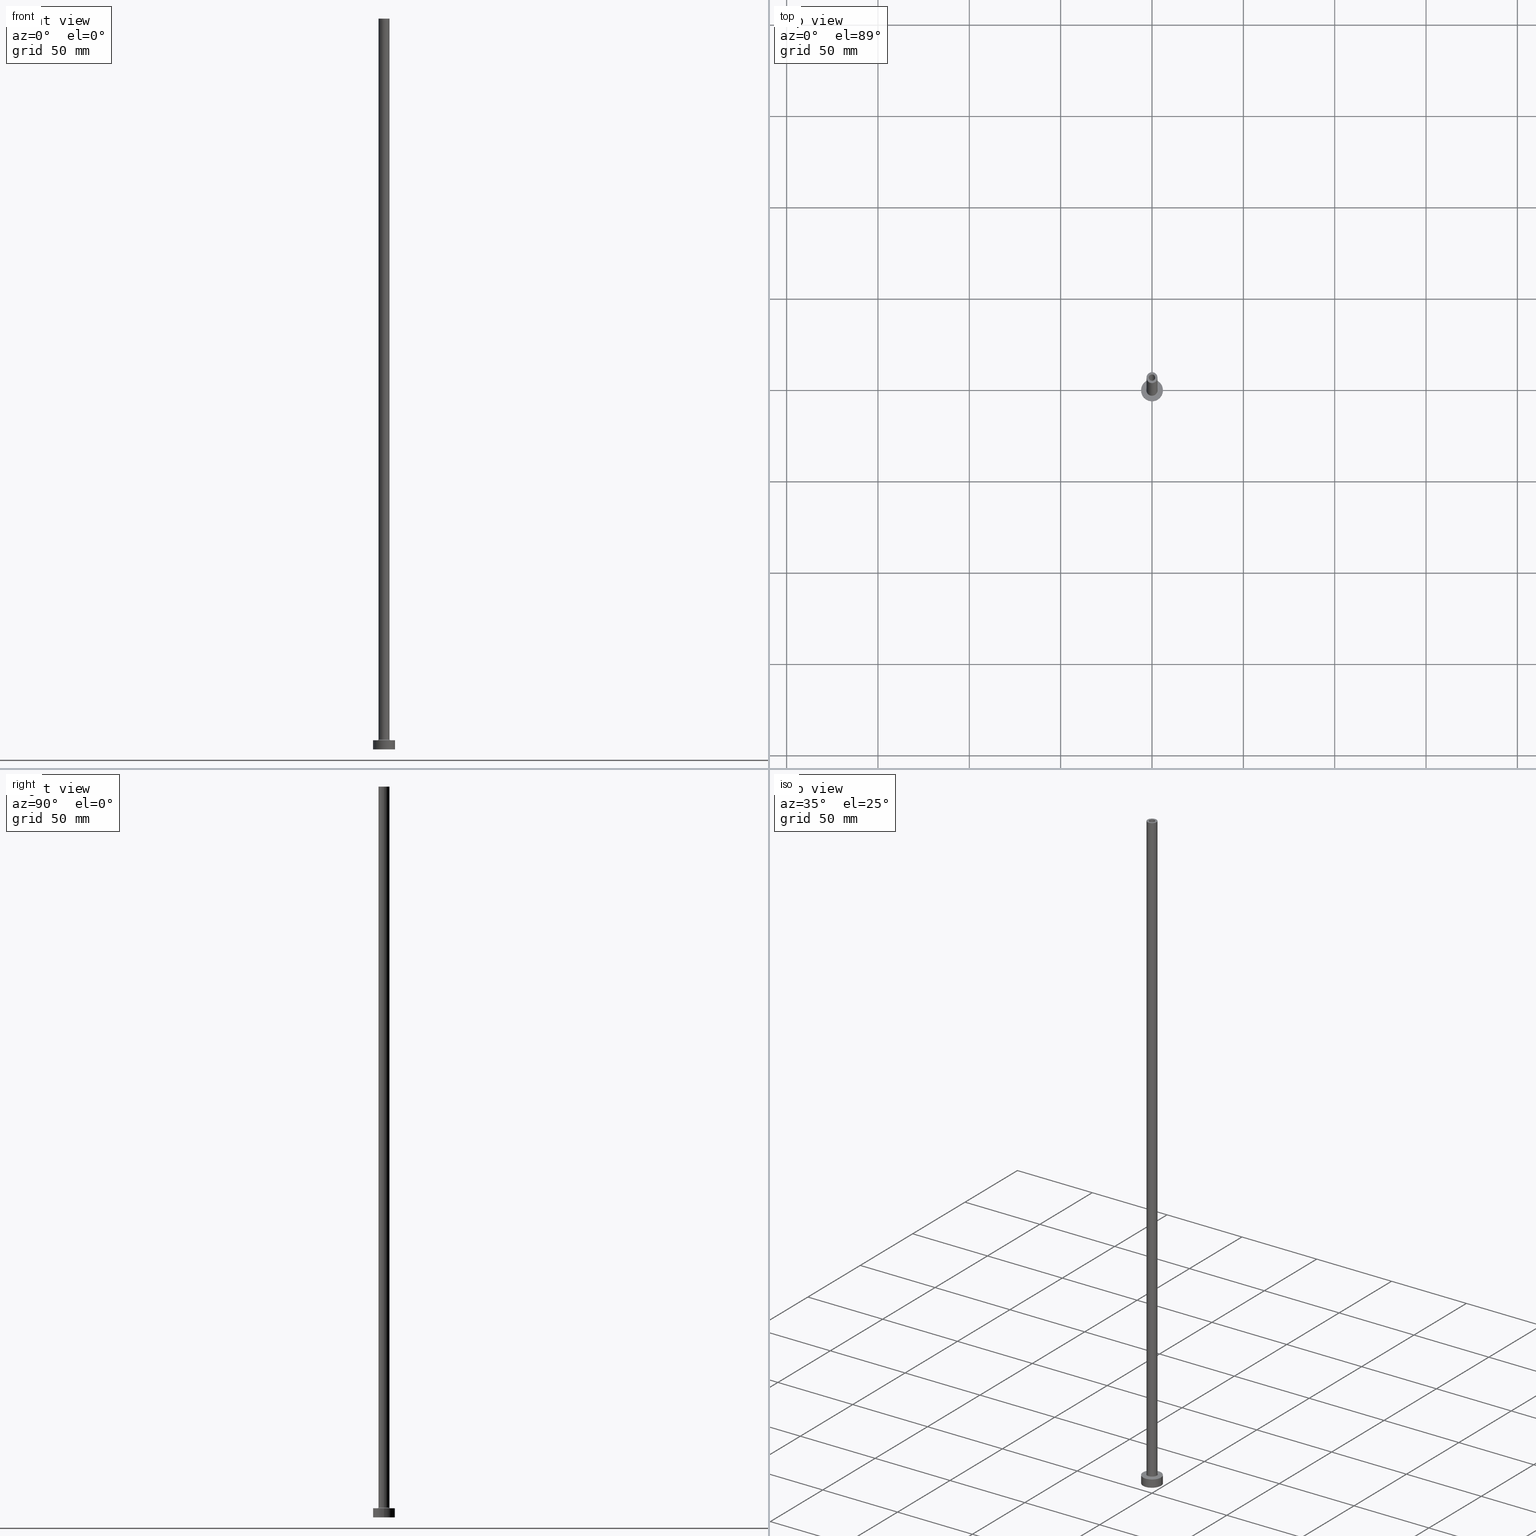
[diagram: canonical four-view strip — front | top / right | iso, engineering-drawing reading convention]
A machine part, canonical four-view strip (front | top / right | iso — engineering-drawing reading convention). The complete STEP part file that produces these views, byte-faithful:
ISO-10303-21;
HEADER;
FILE_DESCRIPTION (( 'STEP AP203' ),
    '1' );
FILE_NAME ('548a.STEP',
    '2023-02-13T17:49:32',
    ( '' ),
    ( '' ),
    'SwSTEP 2.0',
    'SolidWorks 2019',
    '' );
FILE_SCHEMA (( 'CONFIG_CONTROL_DESIGN' ));
ENDSEC;

DATA;
#1 = EDGE_LOOP ( 'NONE', ( #231, #177 ) ) ;
#2 = CARTESIAN_POINT ( 'NONE',  ( 0.000000000000000000, 0.000000000000000000, 400.0000000000000000 ) ) ;
#3 = DIRECTION ( 'NONE',  ( 0.000000000000000000, 0.000000000000000000, 1.000000000000000000 ) ) ;
#4 = ORIENTED_EDGE ( 'NONE', *, *, #334, .T. ) ;
#5 = FACE_OUTER_BOUND ( 'NONE', #202, .T. ) ;
#6 = EDGE_CURVE ( 'NONE', #180, #80, #368, .T. ) ;
#7 = LINE ( 'NONE', #203, #52 ) ;
#8 = AXIS2_PLACEMENT_3D ( 'NONE', #162, #23, #50 ) ;
#9 = ORIENTED_EDGE ( 'NONE', *, *, #28, .T. ) ;
#10 = EDGE_LOOP ( 'NONE', ( #11, #4 ) ) ;
#11 = ORIENTED_EDGE ( 'NONE', *, *, #457, .T. ) ;
#12 = DIRECTION ( 'NONE',  ( 0.000000000000000000, 0.000000000000000000, 1.000000000000000000 ) ) ;
#13 =( GEOMETRIC_REPRESENTATION_CONTEXT ( 3 ) GLOBAL_UNCERTAINTY_ASSIGNED_CONTEXT ( ( #451 ) ) GLOBAL_UNIT_ASSIGNED_CONTEXT ( ( #291, #255, #362 ) ) REPRESENTATION_CONTEXT ( 'NONE', 'WORKASPACE' ) );
#14 = DATE_TIME_ROLE ( 'creation_date' ) ;
#15 = LINE ( 'NONE', #89, #122 ) ;
#16 = AXIS2_PLACEMENT_3D ( 'NONE', #200, #357, #320 ) ;
#17 = EDGE_LOOP ( 'NONE', ( #410, #212 ) ) ;
#18 = APPROVAL_ROLE ( '' ) ;
#19 = PRODUCT_RELATED_PRODUCT_CATEGORY ( 'detail', '', ( #316 ) ) ;
#20 = CARTESIAN_POINT ( 'NONE',  ( 0.000000000000000000, 0.000000000000000000, 5.000000000000000000 ) ) ;
#21 = DATE_AND_TIME ( #157, #120 ) ;
#22 = FACE_OUTER_BOUND ( 'NONE', #1, .T. ) ;
#23 = DIRECTION ( 'NONE',  ( 0.000000000000000000, 0.000000000000000000, 1.000000000000000000 ) ) ;
#24 = DIRECTION ( 'NONE',  ( 0.000000000000000000, 0.000000000000000000, 1.000000000000000000 ) ) ;
#25 = VERTEX_POINT ( 'NONE', #82 ) ;
#26 = VECTOR ( 'NONE', #29, 1000.000000000000000 ) ;
#27 = DIRECTION ( 'NONE',  ( 1.000000000000000000, 0.000000000000000000, 0.000000000000000000 ) ) ;
#28 = EDGE_CURVE ( 'NONE', #86, #418, #92, .T. ) ;
#29 = DIRECTION ( 'NONE',  ( 0.000000000000000000, 0.000000000000000000, -1.000000000000000000 ) ) ;
#30 = CARTESIAN_POINT ( 'NONE',  ( 3.000000000000000444, 3.673940397442059868E-16, 400.0000000000000000 ) ) ;
#31 = DIRECTION ( 'NONE',  ( 0.000000000000000000, 0.000000000000000000, -1.000000000000000000 ) ) ;
#32 = CIRCLE ( 'NONE', #109, 3.000000000000000444 ) ;
#33 = DIRECTION ( 'NONE',  ( 1.000000000000000000, 0.000000000000000000, 0.000000000000000000 ) ) ;
#34 = VERTEX_POINT ( 'NONE', #170 ) ;
#35 = ADVANCED_FACE ( 'NONE', ( #305, #22 ), #193, .T. ) ;
#36 = CARTESIAN_POINT ( 'NONE',  ( 6.000000000000000888, 7.347880794884120722E-16, 5.000000000000000000 ) ) ;
#37 = DIRECTION ( 'NONE',  ( 0.000000000000000000, 0.000000000000000000, 1.000000000000000000 ) ) ;
#38 = DIRECTION ( 'NONE',  ( 0.000000000000000000, 0.000000000000000000, -1.000000000000000000 ) ) ;
#39 = ORIENTED_EDGE ( 'NONE', *, *, #172, .F. ) ;
#40 = CARTESIAN_POINT ( 'NONE',  ( 0.000000000000000000, 0.000000000000000000, 0.000000000000000000 ) ) ;
#41 = CIRCLE ( 'NONE', #423, 3.500000000000000444 ) ;
#42 = ORIENTED_EDGE ( 'NONE', *, *, #121, .F. ) ;
#43 = DIRECTION ( 'NONE',  ( 1.000000000000000000, 0.000000000000000000, 0.000000000000000000 ) ) ;
#44 = EDGE_CURVE ( 'NONE', #345, #396, #32, .T. ) ;
#45 = DIRECTION ( 'NONE',  ( 0.000000000000000000, 0.000000000000000000, 1.000000000000000000 ) ) ;
#46 = AXIS2_PLACEMENT_3D ( 'NONE', #53, #96, #336 ) ;
#47 = CC_DESIGN_PERSON_AND_ORGANIZATION_ASSIGNMENT ( #412, #91, ( #149 ) ) ;
#48 = APPROVAL_DATE_TIME ( #218, #256 ) ;
#49 = VERTEX_POINT ( 'NONE', #456 ) ;
#50 = DIRECTION ( 'NONE',  ( 1.000000000000000000, 0.000000000000000000, 0.000000000000000000 ) ) ;
#51 = APPROVAL_STATUS ( 'not_yet_approved' ) ;
#52 = VECTOR ( 'NONE', #347, 1000.000000000000000 ) ;
#53 = CARTESIAN_POINT ( 'NONE',  ( 0.000000000000000000, 0.000000000000000000, 5.000000000000000000 ) ) ;
#54 = DIRECTION ( 'NONE',  ( 1.000000000000000000, 0.000000000000000000, -0.000000000000000000 ) ) ;
#55 = DIRECTION ( 'NONE',  ( 0.000000000000000000, 0.000000000000000000, 1.000000000000000000 ) ) ;
#56 = DIRECTION ( 'NONE',  ( 1.000000000000000000, 0.000000000000000000, 0.000000000000000000 ) ) ;
#57 = VERTEX_POINT ( 'NONE', #129 ) ;
#58 = DATE_AND_TIME ( #379, #185 ) ;
#59 = EDGE_CURVE ( 'NONE', #25, #80, #132, .T. ) ;
#60 = CYLINDRICAL_SURFACE ( 'NONE', #389, 1.899999999999999911 ) ;
#61 = CIRCLE ( 'NONE', #233, 1.899999999999999911 ) ;
#62 = AXIS2_PLACEMENT_3D ( 'NONE', #279, #315, #312 ) ;
#63 = CARTESIAN_POINT ( 'NONE',  ( 3.000000000000000444, 3.673940397442059868E-16, 400.0000000000000000 ) ) ;
#64 = CARTESIAN_POINT ( 'NONE',  ( 6.000000000000000888, 7.347880794884120722E-16, 5.000000000000000000 ) ) ;
#65 = CARTESIAN_POINT ( 'NONE',  ( 0.000000000000000000, 0.000000000000000000, 355.0000000000000568 ) ) ;
#66 = APPROVAL ( #51, 'NEUR�EN�' ) ;
#67 = ORIENTED_EDGE ( 'NONE', *, *, #235, .F. ) ;
#68 = DIRECTION ( 'NONE',  ( -0.000000000000000000, -0.000000000000000000, -1.000000000000000000 ) ) ;
#69 = AXIS2_PLACEMENT_3D ( 'NONE', #217, #289, #117 ) ;
#70 = AXIS2_PLACEMENT_3D ( 'NONE', #427, #351, #398 ) ;
#71 = DIRECTION ( 'NONE',  ( 0.000000000000000000, 0.000000000000000000, 1.000000000000000000 ) ) ;
#72 = EDGE_LOOP ( 'NONE', ( #77, #283 ) ) ;
#73 = FACE_OUTER_BOUND ( 'NONE', #216, .T. ) ;
#74 = DIRECTION ( 'NONE',  ( -1.000000000000000000, 0.000000000000000000, 0.000000000000000000 ) ) ;
#75 = ORIENTED_EDGE ( 'NONE', *, *, #154, .T. ) ;
#76 = DIRECTION ( 'NONE',  ( -0.000000000000000000, -0.000000000000000000, -1.000000000000000000 ) ) ;
#77 = ORIENTED_EDGE ( 'NONE', *, *, #326, .F. ) ;
#78 = FACE_OUTER_BOUND ( 'NONE', #441, .T. ) ;
#79 = ADVANCED_FACE ( 'NONE', ( #373 ), #60, .F. ) ;
#80 = VERTEX_POINT ( 'NONE', #380 ) ;
#81 = VECTOR ( 'NONE', #198, 1000.000000000000000 ) ;
#82 = CARTESIAN_POINT ( 'NONE',  ( 3.500000000000000444, 0.000000000000000000, 5.000000000000002665 ) ) ;
#83 = ADVANCED_FACE ( 'NONE', ( #196 ), #264, .T. ) ;
#84 = COORDINATED_UNIVERSAL_TIME_OFFSET ( 1, 0, .AHEAD. ) ;
#85 = TOROIDAL_SURFACE ( 'NONE', #424, 3.500000000000000444, 0.5000000000000000000 ) ;
#86 = VERTEX_POINT ( 'NONE', #335 ) ;
#87 = APPROVAL_DATE_TIME ( #98, #443 ) ;
#88 = EDGE_LOOP ( 'NONE', ( #106, #311 ) ) ;
#89 = CARTESIAN_POINT ( 'NONE',  ( 1.899999999999999911, 2.326828918379971365E-16, 360.3740115370177932 ) ) ;
#90 = CC_DESIGN_PERSON_AND_ORGANIZATION_ASSIGNMENT ( #225, #372, ( #149 ) ) ;
#91 = PERSON_AND_ORGANIZATION_ROLE ( 'creator' ) ;
#92 = CIRCLE ( 'NONE', #327, 1.899999999999999911 ) ;
#93 = AXIS2_PLACEMENT_3D ( 'NONE', #65, #37, #344 ) ;
#94 = CC_DESIGN_SECURITY_CLASSIFICATION ( #297, ( #149 ) ) ;
#95 = CARTESIAN_POINT ( 'NONE',  ( 0.000000000000000000, 0.000000000000000000, 400.0000000000000000 ) ) ;
#96 = DIRECTION ( 'NONE',  ( 0.000000000000000000, 0.000000000000000000, 1.000000000000000000 ) ) ;
#97 = ORIENTED_EDGE ( 'NONE', *, *, #191, .T. ) ;
#98 = DATE_AND_TIME ( #331, #266 ) ;
#99 = EDGE_CURVE ( 'NONE', #34, #439, #284, .T. ) ;
#100 = DIRECTION ( 'NONE',  ( -0.000000000000000000, -0.000000000000000000, -1.000000000000000000 ) ) ;
#101 = PLANE ( 'NONE',  #119 ) ;
#102 = CARTESIAN_POINT ( 'NONE',  ( 0.000000000000000000, 0.000000000000000000, 5.000000000000000000 ) ) ;
#103 = AXIS2_PLACEMENT_3D ( 'NONE', #2, #38, #276 ) ;
#104 = EDGE_CURVE ( 'NONE', #396, #141, #223, .T. ) ;
#105 = ORIENTED_EDGE ( 'NONE', *, *, #397, .F. ) ;
#106 = ORIENTED_EDGE ( 'NONE', *, *, #28, .F. ) ;
#107 = ORIENTED_EDGE ( 'NONE', *, *, #59, .F. ) ;
#108 = CARTESIAN_POINT ( 'NONE',  ( 0.000000000000000000, 0.000000000000000000, 360.3740115370177932 ) ) ;
#109 = AXIS2_PLACEMENT_3D ( 'NONE', #169, #300, #413 ) ;
#110 = TOROIDAL_SURFACE ( 'NONE', #70, 3.500000000000000444, 0.5000000000000000000 ) ;
#111 = VERTEX_POINT ( 'NONE', #273 ) ;
#112 = DIRECTION ( 'NONE',  ( 0.000000000000000000, 0.000000000000000000, 1.000000000000000000 ) ) ;
#113 = ORIENTED_EDGE ( 'NONE', *, *, #151, .F. ) ;
#114 = EDGE_CURVE ( 'NONE', #431, #111, #61, .T. ) ;
#115 = DIRECTION ( 'NONE',  ( 0.000000000000000000, 0.000000000000000000, 1.000000000000000000 ) ) ;
#116 = CARTESIAN_POINT ( 'NONE',  ( 1.899999999999999911, 2.326828918379971365E-16, 0.000000000000000000 ) ) ;
#117 = DIRECTION ( 'NONE',  ( -1.000000000000000000, 1.224646799147354440E-16, 0.000000000000000000 ) ) ;
#118 = CLOSED_SHELL ( 'NONE', ( #221, #79, #226, #405, #352, #272, #35, #295, #83, #321, #159, #290, #376, #207 ) ) ;
#119 = AXIS2_PLACEMENT_3D ( 'NONE', #209, #179, #274 ) ;
#120 = LOCAL_TIME ( 18, 49, 32.00000000000000000, #407 ) ;
#121 = EDGE_CURVE ( 'NONE', #80, #25, #41, .T. ) ;
#122 = VECTOR ( 'NONE', #461, 1000.000000000000000 ) ;
#123 = APPROVAL_PERSON_ORGANIZATION ( #124, #256, #374 ) ;
#124 = PERSON_AND_ORGANIZATION ( #332, #133 ) ;
#125 = CC_DESIGN_PERSON_AND_ORGANIZATION_ASSIGNMENT ( #232, #449, ( #426 ) ) ;
#126 = LINE ( 'NONE', #64, #81 ) ;
#127 = EDGE_LOOP ( 'NONE', ( #339, #239 ) ) ;
#128 = APPROVAL_ROLE ( '' ) ;
#129 = CARTESIAN_POINT ( 'NONE',  ( -6.000000000000000888, 0.000000000000000000, 5.000000000000000000 ) ) ;
#130 = SECURITY_CLASSIFICATION_LEVEL ( 'unclassified' ) ;
#131 = MECHANICAL_CONTEXT ( 'NONE', #265, 'mechanical' ) ;
#132 = CIRCLE ( 'NONE', #227, 3.500000000000000444 ) ;
#133 = ORGANIZATION ( 'NEUR�EN�', 'NEUR�EN�', '' ) ;
#134 = DIRECTION ( 'NONE',  ( 0.000000000000000000, 0.000000000000000000, 1.000000000000000000 ) ) ;
#135 = EDGE_CURVE ( 'NONE', #396, #345, #213, .T. ) ;
#136 = DIRECTION ( 'NONE',  ( -1.000000000000000000, 0.000000000000000000, 0.000000000000000000 ) ) ;
#137 = DIRECTION ( 'NONE',  ( -0.000000000000000000, -0.000000000000000000, -1.000000000000000000 ) ) ;
#138 = FACE_OUTER_BOUND ( 'NONE', #72, .T. ) ;
#139 = AXIS2_PLACEMENT_3D ( 'NONE', #395, #348, #74 ) ;
#140 = PLANE ( 'NONE',  #214 ) ;
#141 = VERTEX_POINT ( 'NONE', #341 ) ;
#142 = CYLINDRICAL_SURFACE ( 'NONE', #62, 1.750000000000000000 ) ;
#143 = FACE_BOUND ( 'NONE', #402, .T. ) ;
#144 = ORIENTED_EDGE ( 'NONE', *, *, #334, .F. ) ;
#145 = CYLINDRICAL_SURFACE ( 'NONE', #319, 1.899999999999999911 ) ;
#146 = CARTESIAN_POINT ( 'NONE',  ( 0.000000000000000000, 0.000000000000000000, 5.500000000000005329 ) ) ;
#147 = EDGE_LOOP ( 'NONE', ( #113, #75, #194, #39 ) ) ;
#148 = DIRECTION ( 'NONE',  ( 0.000000000000000000, 0.000000000000000000, -1.000000000000000000 ) ) ;
#149 = PRODUCT_DEFINITION_FORMATION_WITH_SPECIFIED_SOURCE ( 'LIBOVOLN�', '', #316, .NOT_KNOWN. ) ;
#150 = CARTESIAN_POINT ( 'NONE',  ( 1.750000000000000000, 2.143131898507867804E-16, 400.0000000000000000 ) ) ;
#151 = EDGE_CURVE ( 'NONE', #282, #57, #333, .T. ) ;
#152 = ORIENTED_EDGE ( 'NONE', *, *, #165, .F. ) ;
#153 = FACE_OUTER_BOUND ( 'NONE', #428, .T. ) ;
#154 = EDGE_CURVE ( 'NONE', #282, #186, #126, .T. ) ;
#155 = CARTESIAN_POINT ( 'NONE',  ( 0.000000000000000000, 0.000000000000000000, 400.0000000000000000 ) ) ;
#156 = CIRCLE ( 'NONE', #160, 1.899999999999999911 ) ;
#157 = CALENDAR_DATE ( 2023, 13, 2 ) ;
#158 = COORDINATED_UNIVERSAL_TIME_OFFSET ( 1, 0, .AHEAD. ) ;
#159 = ADVANCED_FACE ( 'NONE', ( #261 ), #85, .F. ) ;
#160 = AXIS2_PLACEMENT_3D ( 'NONE', #178, #355, #432 ) ;
#161 = CC_DESIGN_APPROVAL ( #256, ( #297 ) ) ;
#162 = CARTESIAN_POINT ( 'NONE',  ( 0.000000000000000000, 0.000000000000000000, 0.000000000000000000 ) ) ;
#163 = DIRECTION ( 'NONE',  ( 1.000000000000000000, 0.000000000000000000, 0.000000000000000000 ) ) ;
#164 = DESIGN_CONTEXT ( 'detailed design', #322, 'design' ) ;
#165 = EDGE_CURVE ( 'NONE', #57, #282, #371, .T. ) ;
#166 = LINE ( 'NONE', #230, #307 ) ;
#167 = APPLICATION_PROTOCOL_DEFINITION ( 'international standard', 'config_control_design', 1994, #265 ) ;
#168 = LOCAL_TIME ( 18, 49, 32.00000000000000000, #84 ) ;
#169 = CARTESIAN_POINT ( 'NONE',  ( 0.000000000000000000, 0.000000000000000000, 400.0000000000000000 ) ) ;
#170 = CARTESIAN_POINT ( 'NONE',  ( -1.750000000000000000, 0.000000000000000000, 400.0000000000000000 ) ) ;
#171 = CARTESIAN_POINT ( 'NONE',  ( 0.000000000000000000, 0.000000000000000000, 355.0000000000000568 ) ) ;
#172 = EDGE_CURVE ( 'NONE', #57, #49, #166, .T. ) ;
#173 = EDGE_LOOP ( 'NONE', ( #370, #350, #325, #144 ) ) ;
#174 = CYLINDRICAL_SURFACE ( 'NONE', #103, 1.750000000000000000 ) ;
#175 = FACE_OUTER_BOUND ( 'NONE', #147, .T. ) ;
#176 = ORIENTED_EDGE ( 'NONE', *, *, #172, .T. ) ;
#177 = ORIENTED_EDGE ( 'NONE', *, *, #151, .T. ) ;
#178 = CARTESIAN_POINT ( 'NONE',  ( 0.000000000000000000, 0.000000000000000000, 0.000000000000000000 ) ) ;
#179 = DIRECTION ( 'NONE',  ( 0.000000000000000000, 0.000000000000000000, 1.000000000000000000 ) ) ;
#180 = VERTEX_POINT ( 'NONE', #318 ) ;
#181 = LINE ( 'NONE', #401, #244 ) ;
#182 = CIRCLE ( 'NONE', #93, 1.899999999999999911 ) ;
#183 = ORIENTED_EDGE ( 'NONE', *, *, #99, .F. ) ;
#184 = ORIENTED_EDGE ( 'NONE', *, *, #114, .T. ) ;
#185 = LOCAL_TIME ( 18, 49, 32.00000000000000000, #363 ) ;
#186 = VERTEX_POINT ( 'NONE', #458 ) ;
#187 = EDGE_CURVE ( 'NONE', #418, #86, #156, .T. ) ;
#188 = PERSON_AND_ORGANIZATION ( #332, #133 ) ;
#189 = AXIS2_PLACEMENT_3D ( 'NONE', #155, #12, #215 ) ;
#190 = CARTESIAN_POINT ( 'NONE',  ( 0.000000000000000000, 0.000000000000000000, 5.500000000000005329 ) ) ;
#191 = EDGE_CURVE ( 'NONE', #439, #364, #309, .T. ) ;
#192 = DIRECTION ( 'NONE',  ( 1.000000000000000000, 0.000000000000000000, 0.000000000000000000 ) ) ;
#193 = PLANE ( 'NONE',  #435 ) ;
#194 = ORIENTED_EDGE ( 'NONE', *, *, #416, .T. ) ;
#195 = CC_DESIGN_APPROVAL ( #66, ( #149 ) ) ;
#196 = FACE_OUTER_BOUND ( 'NONE', #278, .T. ) ;
#197 = CARTESIAN_POINT ( 'NONE',  ( 3.500000000000000444, 0.000000000000000000, 5.500000000000005329 ) ) ;
#198 = DIRECTION ( 'NONE',  ( -0.000000000000000000, -0.000000000000000000, -1.000000000000000000 ) ) ;
#199 = CC_DESIGN_PERSON_AND_ORGANIZATION_ASSIGNMENT ( #454, #269, ( #316 ) ) ;
#200 = CARTESIAN_POINT ( 'NONE',  ( 0.000000000000000000, 0.000000000000000000, 400.0000000000000000 ) ) ;
#201 = ORIENTED_EDGE ( 'NONE', *, *, #434, .F. ) ;
#202 = EDGE_LOOP ( 'NONE', ( #323, #184, #242, #9 ) ) ;
#203 = CARTESIAN_POINT ( 'NONE',  ( -1.750000000000000000, 0.000000000000000000, 400.0000000000000000 ) ) ;
#204 = CIRCLE ( 'NONE', #275, 6.000000000000000888 ) ;
#205 = CYLINDRICAL_SURFACE ( 'NONE', #139, 6.000000000000000888 ) ;
#206 = ORIENTED_EDGE ( 'NONE', *, *, #154, .F. ) ;
#207 = ADVANCED_FACE ( 'NONE', ( #250 ), #174, .F. ) ;
#208 = CARTESIAN_POINT ( 'NONE',  ( 0.000000000000000000, 0.000000000000000000, 0.000000000000000000 ) ) ;
#209 = CARTESIAN_POINT ( 'NONE',  ( 0.000000000000000000, 0.000000000000000000, 355.0000000000000568 ) ) ;
#210 = EDGE_LOOP ( 'NONE', ( #391, #268, #107, #105 ) ) ;
#211 = CARTESIAN_POINT ( 'NONE',  ( 0.000000000000000000, 0.000000000000000000, 0.000000000000000000 ) ) ;
#212 = ORIENTED_EDGE ( 'NONE', *, *, #135, .T. ) ;
#213 = CIRCLE ( 'NONE', #459, 3.000000000000000444 ) ;
#214 = AXIS2_PLACEMENT_3D ( 'NONE', #277, #385, #384 ) ;
#215 = DIRECTION ( 'NONE',  ( 1.000000000000000000, 0.000000000000000000, 0.000000000000000000 ) ) ;
#216 = EDGE_LOOP ( 'NONE', ( #67, #353 ) ) ;
#217 = CARTESIAN_POINT ( 'NONE',  ( -3.500000000000000444, 4.286263797015737088E-16, 5.500000000000005329 ) ) ;
#218 = DATE_AND_TIME ( #446, #168 ) ;
#219 = AXIS2_PLACEMENT_3D ( 'NONE', #95, #343, #420 ) ;
#220 = AXIS2_PLACEMENT_3D ( 'NONE', #296, #294, #43 ) ;
#221 = ADVANCED_FACE ( 'NONE', ( #153 ), #142, .F. ) ;
#222 = SHAPE_DEFINITION_REPRESENTATION ( #394, #249 ) ;
#223 = LINE ( 'NONE', #30, #257 ) ;
#224 = PERSON_AND_ORGANIZATION ( #332, #133 ) ;
#225 = PERSON_AND_ORGANIZATION ( #332, #133 ) ;
#226 = ADVANCED_FACE ( 'NONE', ( #287 ), #110, .F. ) ;
#227 = AXIS2_PLACEMENT_3D ( 'NONE', #383, #137, #338 ) ;
#228 = AXIS2_PLACEMENT_3D ( 'NONE', #247, #442, #399 ) ;
#229 = DIRECTION ( 'NONE',  ( 0.000000000000000000, 0.000000000000000000, -1.000000000000000000 ) ) ;
#230 = CARTESIAN_POINT ( 'NONE',  ( -6.000000000000000888, 0.000000000000000000, 5.000000000000000000 ) ) ;
#231 = ORIENTED_EDGE ( 'NONE', *, *, #165, .T. ) ;
#232 = PERSON_AND_ORGANIZATION ( #332, #133 ) ;
#233 = AXIS2_PLACEMENT_3D ( 'NONE', #171, #134, #455 ) ;
#234 = APPROVAL_PERSON_ORGANIZATION ( #188, #443, #18 ) ;
#235 = EDGE_CURVE ( 'NONE', #49, #186, #381, .T. ) ;
#236 = DIRECTION ( 'NONE',  ( 0.000000000000000000, 0.000000000000000000, 1.000000000000000000 ) ) ;
#237 = CYLINDRICAL_SURFACE ( 'NONE', #16, 3.000000000000000444 ) ;
#238 = ORIENTED_EDGE ( 'NONE', *, *, #187, .T. ) ;
#239 = ORIENTED_EDGE ( 'NONE', *, *, #121, .T. ) ;
#240 = DIRECTION ( 'NONE',  ( 1.000000000000000000, 0.000000000000000000, 0.000000000000000000 ) ) ;
#241 = EDGE_CURVE ( 'NONE', #345, #180, #181, .T. ) ;
#242 = ORIENTED_EDGE ( 'NONE', *, *, #360, .T. ) ;
#243 = DIRECTION ( 'NONE',  ( -1.000000000000000000, 0.000000000000000000, 0.000000000000000000 ) ) ;
#244 = VECTOR ( 'NONE', #76, 1000.000000000000000 ) ;
#245 = ORIENTED_EDGE ( 'NONE', *, *, #99, .T. ) ;
#246 = CARTESIAN_POINT ( 'NONE',  ( 1.750000000000000000, 2.143131898507867804E-16, 400.0000000000000000 ) ) ;
#247 = CARTESIAN_POINT ( 'NONE',  ( 0.000000000000000000, 0.000000000000000000, 355.0000000000000568 ) ) ;
#248 = ORIENTED_EDGE ( 'NONE', *, *, #360, .F. ) ;
#249 = ADVANCED_BREP_SHAPE_REPRESENTATION ( '548a', ( #392, #8 ), #13 ) ;
#250 = FACE_OUTER_BOUND ( 'NONE', #173, .T. ) ;
#251 = ORIENTED_EDGE ( 'NONE', *, *, #280, .F. ) ;
#252 = AXIS2_PLACEMENT_3D ( 'NONE', #102, #417, #192 ) ;
#253 = CC_DESIGN_DATE_AND_TIME_ASSIGNMENT ( #58, #14, ( #426 ) ) ;
#254 = CIRCLE ( 'NONE', #228, 1.750000000000000000 ) ;
#255 =( NAMED_UNIT ( * ) PLANE_ANGLE_UNIT ( ) SI_UNIT ( $, .RADIAN. ) );
#256 = APPROVAL ( #414, 'NEUR�EN�' ) ;
#257 = VECTOR ( 'NONE', #302, 1000.000000000000000 ) ;
#258 = PERSON_AND_ORGANIZATION ( #332, #133 ) ;
#259 = LOCAL_TIME ( 18, 49, 32.00000000000000000, #158 ) ;
#260 = DATE_AND_TIME ( #448, #259 ) ;
#261 = FACE_OUTER_BOUND ( 'NONE', #330, .T. ) ;
#262 = ORIENTED_EDGE ( 'NONE', *, *, #326, .T. ) ;
#263 = APPROVAL_DATE_TIME ( #260, #66 ) ;
#264 = CYLINDRICAL_SURFACE ( 'NONE', #219, 3.000000000000000444 ) ;
#265 = APPLICATION_CONTEXT ( 'configuration controlled 3d designs of mechanical parts and assemblies' ) ;
#266 = LOCAL_TIME ( 18, 49, 32.00000000000000000, #419 ) ;
#267 = CARTESIAN_POINT ( 'NONE',  ( 0.000000000000000000, 0.000000000000000000, 5.000000000000000000 ) ) ;
#268 = ORIENTED_EDGE ( 'NONE', *, *, #6, .T. ) ;
#269 = PERSON_AND_ORGANIZATION_ROLE ( 'design_owner' ) ;
#270 = DIRECTION ( 'NONE',  ( 1.000000000000000000, 0.000000000000000000, 0.000000000000000000 ) ) ;
#271 = FACE_OUTER_BOUND ( 'NONE', #17, .T. ) ;
#272 = ADVANCED_FACE ( 'NONE', ( #78 ), #387, .T. ) ;
#273 = CARTESIAN_POINT ( 'NONE',  ( -1.899999999999999911, 0.000000000000000000, 355.0000000000000568 ) ) ;
#274 = DIRECTION ( 'NONE',  ( 1.000000000000000000, 0.000000000000000000, -0.000000000000000000 ) ) ;
#275 = AXIS2_PLACEMENT_3D ( 'NONE', #211, #45, #438 ) ;
#276 = DIRECTION ( 'NONE',  ( -1.000000000000000000, 0.000000000000000000, 0.000000000000000000 ) ) ;
#277 = CARTESIAN_POINT ( 'NONE',  ( 0.000000000000000000, 0.000000000000000000, 400.0000000000000000 ) ) ;
#278 = EDGE_LOOP ( 'NONE', ( #314, #378, #354, #406 ) ) ;
#279 = CARTESIAN_POINT ( 'NONE',  ( 0.000000000000000000, 0.000000000000000000, 400.0000000000000000 ) ) ;
#280 = EDGE_CURVE ( 'NONE', #34, #386, #7, .T. ) ;
#281 = CARTESIAN_POINT ( 'NONE',  ( -3.000000000000000444, 0.000000000000000000, 400.0000000000000000 ) ) ;
#282 = VERTEX_POINT ( 'NONE', #36 ) ;
#283 = ORIENTED_EDGE ( 'NONE', *, *, #114, .F. ) ;
#284 = CIRCLE ( 'NONE', #444, 1.750000000000000000 ) ;
#285 = CARTESIAN_POINT ( 'NONE',  ( 0.000000000000000000, 0.000000000000000000, 5.000000000000000000 ) ) ;
#286 = ORIENTED_EDGE ( 'NONE', *, *, #104, .T. ) ;
#287 = FACE_OUTER_BOUND ( 'NONE', #210, .T. ) ;
#288 = EDGE_LOOP ( 'NONE', ( #317, #286, #346, #429 ) ) ;
#289 = DIRECTION ( 'NONE',  ( 1.224646799147353207E-16, 1.000000000000000000, -0.000000000000000000 ) ) ;
#290 = ADVANCED_FACE ( 'NONE', ( #5 ), #145, .F. ) ;
#291 =( LENGTH_UNIT ( ) NAMED_UNIT ( * ) SI_UNIT ( .MILLI., .METRE. ) );
#292 = ORIENTED_EDGE ( 'NONE', *, *, #409, .F. ) ;
#293 = AXIS2_PLACEMENT_3D ( 'NONE', #208, #112, #54 ) ;
#294 = DIRECTION ( 'NONE',  ( 0.000000000000000000, 0.000000000000000000, 1.000000000000000000 ) ) ;
#295 = ADVANCED_FACE ( 'NONE', ( #393, #73 ), #349, .F. ) ;
#296 = CARTESIAN_POINT ( 'NONE',  ( 0.000000000000000000, 0.000000000000000000, 5.500000000000005329 ) ) ;
#297 = SECURITY_CLASSIFICATION ( '', '', #130 ) ;
#298 = APPROVAL_STATUS ( 'not_yet_approved' ) ;
#299 = DIRECTION ( 'NONE',  ( 1.000000000000000000, 0.000000000000000000, -0.000000000000000000 ) ) ;
#300 = DIRECTION ( 'NONE',  ( 0.000000000000000000, 0.000000000000000000, 1.000000000000000000 ) ) ;
#301 = CIRCLE ( 'NONE', #436, 3.000000000000000444 ) ;
#302 = DIRECTION ( 'NONE',  ( -0.000000000000000000, -0.000000000000000000, -1.000000000000000000 ) ) ;
#303 = EDGE_CURVE ( 'NONE', #431, #418, #15, .T. ) ;
#304 = DIRECTION ( 'NONE',  ( 0.000000000000000000, 0.000000000000000000, -1.000000000000000000 ) ) ;
#305 = FACE_BOUND ( 'NONE', #127, .T. ) ;
#306 = EDGE_LOOP ( 'NONE', ( #262, #358, #238, #248 ) ) ;
#307 = VECTOR ( 'NONE', #377, 1000.000000000000000 ) ;
#308 = CC_DESIGN_DATE_AND_TIME_ASSIGNMENT ( #21, #329, ( #297 ) ) ;
#309 = LINE ( 'NONE', #246, #361 ) ;
#310 = CARTESIAN_POINT ( 'NONE',  ( -1.899999999999999911, 0.000000000000000000, 360.3740115370177932 ) ) ;
#311 = ORIENTED_EDGE ( 'NONE', *, *, #187, .F. ) ;
#312 = DIRECTION ( 'NONE',  ( -1.000000000000000000, 0.000000000000000000, 0.000000000000000000 ) ) ;
#313 = LINE ( 'NONE', #310, #26 ) ;
#314 = ORIENTED_EDGE ( 'NONE', *, *, #104, .F. ) ;
#315 = DIRECTION ( 'NONE',  ( 0.000000000000000000, 0.000000000000000000, -1.000000000000000000 ) ) ;
#316 = PRODUCT ( '548a', '548a', '', ( #131 ) ) ;
#317 = ORIENTED_EDGE ( 'NONE', *, *, #135, .F. ) ;
#318 = CARTESIAN_POINT ( 'NONE',  ( -3.000000000000000444, 0.000000000000000000, 5.500000000000005329 ) ) ;
#319 = AXIS2_PLACEMENT_3D ( 'NONE', #108, #148, #243 ) ;
#320 = DIRECTION ( 'NONE',  ( -1.000000000000000000, 0.000000000000000000, 0.000000000000000000 ) ) ;
#321 = ADVANCED_FACE ( 'NONE', ( #143, #271 ), #140, .T. ) ;
#322 = APPLICATION_CONTEXT ( 'configuration controlled 3d designs of mechanical parts and assemblies' ) ;
#323 = ORIENTED_EDGE ( 'NONE', *, *, #303, .F. ) ;
#324 = ORIENTED_EDGE ( 'NONE', *, *, #397, .T. ) ;
#325 = ORIENTED_EDGE ( 'NONE', *, *, #280, .T. ) ;
#326 = EDGE_CURVE ( 'NONE', #111, #431, #182, .T. ) ;
#327 = AXIS2_PLACEMENT_3D ( 'NONE', #440, #403, #27 ) ;
#328 = AXIS2_PLACEMENT_3D ( 'NONE', #388, #71, #33 ) ;
#329 = DATE_TIME_ROLE ( 'classification_date' ) ;
#330 = EDGE_LOOP ( 'NONE', ( #400, #292, #324, #42 ) ) ;
#331 = CALENDAR_DATE ( 2023, 13, 2 ) ;
#332 = PERSON ( 'NEUR�EN�', 'NEUR�EN�', 'NEUR�EN�', ('NEUR�EN�'), ('NEUR�EN�'), ('NEUR�EN�') ) ;
#333 = CIRCLE ( 'NONE', #252, 6.000000000000000888 ) ;
#334 = EDGE_CURVE ( 'NONE', #364, #386, #453, .T. ) ;
#335 = CARTESIAN_POINT ( 'NONE',  ( -1.899999999999999911, 0.000000000000000000, 0.000000000000000000 ) ) ;
#336 = DIRECTION ( 'NONE',  ( 1.000000000000000000, 0.000000000000000000, 0.000000000000000000 ) ) ;
#337 = CC_DESIGN_PERSON_AND_ORGANIZATION_ASSIGNMENT ( #224, #369, ( #297 ) ) ;
#338 = DIRECTION ( 'NONE',  ( 1.000000000000000000, 0.000000000000000000, 0.000000000000000000 ) ) ;
#339 = ORIENTED_EDGE ( 'NONE', *, *, #59, .T. ) ;
#340 = CIRCLE ( 'NONE', #415, 0.5000000000000004441 ) ;
#341 = CARTESIAN_POINT ( 'NONE',  ( 3.000000000000000444, 3.673940397442059868E-16, 5.500000000000005329 ) ) ;
#342 = DIRECTION ( 'NONE',  ( 0.000000000000000000, -1.000000000000000000, 0.000000000000000000 ) ) ;
#343 = DIRECTION ( 'NONE',  ( -0.000000000000000000, -0.000000000000000000, -1.000000000000000000 ) ) ;
#344 = DIRECTION ( 'NONE',  ( 1.000000000000000000, 0.000000000000000000, 0.000000000000000000 ) ) ;
#345 = VERTEX_POINT ( 'NONE', #281 ) ;
#346 = ORIENTED_EDGE ( 'NONE', *, *, #409, .T. ) ;
#347 = DIRECTION ( 'NONE',  ( 0.000000000000000000, 0.000000000000000000, -1.000000000000000000 ) ) ;
#348 = DIRECTION ( 'NONE',  ( -0.000000000000000000, -0.000000000000000000, -1.000000000000000000 ) ) ;
#349 = PLANE ( 'NONE',  #293 ) ;
#350 = ORIENTED_EDGE ( 'NONE', *, *, #434, .T. ) ;
#351 = DIRECTION ( 'NONE',  ( 0.000000000000000000, 0.000000000000000000, 1.000000000000000000 ) ) ;
#352 = ADVANCED_FACE ( 'NONE', ( #175 ), #205, .T. ) ;
#353 = ORIENTED_EDGE ( 'NONE', *, *, #416, .F. ) ;
#354 = ORIENTED_EDGE ( 'NONE', *, *, #241, .T. ) ;
#355 = DIRECTION ( 'NONE',  ( -0.000000000000000000, -0.000000000000000000, -1.000000000000000000 ) ) ;
#356 = AXIS2_PLACEMENT_3D ( 'NONE', #285, #68, #437 ) ;
#357 = DIRECTION ( 'NONE',  ( -0.000000000000000000, -0.000000000000000000, -1.000000000000000000 ) ) ;
#358 = ORIENTED_EDGE ( 'NONE', *, *, #303, .T. ) ;
#359 = CARTESIAN_POINT ( 'NONE',  ( 1.899999999999999911, 2.326828918379971365E-16, 355.0000000000000568 ) ) ;
#360 = EDGE_CURVE ( 'NONE', #111, #86, #313, .T. ) ;
#361 = VECTOR ( 'NONE', #31, 1000.000000000000000 ) ;
#362 =( NAMED_UNIT ( * ) SI_UNIT ( $, .STERADIAN. ) SOLID_ANGLE_UNIT ( ) );
#363 = COORDINATED_UNIVERSAL_TIME_OFFSET ( 1, 0, .AHEAD. ) ;
#364 = VERTEX_POINT ( 'NONE', #421 ) ;
#365 = EDGE_CURVE ( 'NONE', #180, #141, #301, .T. ) ;
#366 = APPLICATION_PROTOCOL_DEFINITION ( 'international standard', 'config_control_design', 1994, #322 ) ;
#367 = DIRECTION ( 'NONE',  ( 1.000000000000000000, 0.000000000000000000, 0.000000000000000000 ) ) ;
#368 = CIRCLE ( 'NONE', #69, 0.4999999999999995559 ) ;
#369 = PERSON_AND_ORGANIZATION_ROLE ( 'classification_officer' ) ;
#370 = ORIENTED_EDGE ( 'NONE', *, *, #191, .F. ) ;
#371 = CIRCLE ( 'NONE', #46, 6.000000000000000888 ) ;
#372 = PERSON_AND_ORGANIZATION_ROLE ( 'design_supplier' ) ;
#373 = FACE_OUTER_BOUND ( 'NONE', #306, .T. ) ;
#374 = APPROVAL_ROLE ( '' ) ;
#375 = ORIENTED_EDGE ( 'NONE', *, *, #235, .T. ) ;
#376 = ADVANCED_FACE ( 'NONE', ( #433, #138 ), #101, .F. ) ;
#377 = DIRECTION ( 'NONE',  ( -0.000000000000000000, -0.000000000000000000, -1.000000000000000000 ) ) ;
#378 = ORIENTED_EDGE ( 'NONE', *, *, #44, .F. ) ;
#379 = CALENDAR_DATE ( 2023, 13, 2 ) ;
#380 = CARTESIAN_POINT ( 'NONE',  ( -3.500000000000000444, 4.286263797015737088E-16, 5.000000000000002665 ) ) ;
#381 = CIRCLE ( 'NONE', #460, 6.000000000000000888 ) ;
#382 = CARTESIAN_POINT ( 'NONE',  ( -1.750000000000000000, 0.000000000000000000, 355.0000000000000568 ) ) ;
#383 = CARTESIAN_POINT ( 'NONE',  ( 0.000000000000000000, 0.000000000000000000, 5.000000000000000000 ) ) ;
#384 = DIRECTION ( 'NONE',  ( 1.000000000000000000, 0.000000000000000000, -0.000000000000000000 ) ) ;
#385 = DIRECTION ( 'NONE',  ( 0.000000000000000000, 0.000000000000000000, 1.000000000000000000 ) ) ;
#386 = VERTEX_POINT ( 'NONE', #382 ) ;
#387 = CYLINDRICAL_SURFACE ( 'NONE', #356, 6.000000000000000888 ) ;
#388 = CARTESIAN_POINT ( 'NONE',  ( 0.000000000000000000, 0.000000000000000000, 355.0000000000000568 ) ) ;
#389 = AXIS2_PLACEMENT_3D ( 'NONE', #452, #229, #136 ) ;
#390 = CC_DESIGN_APPROVAL ( #443, ( #426 ) ) ;
#391 = ORIENTED_EDGE ( 'NONE', *, *, #365, .F. ) ;
#392 = MANIFOLD_SOLID_BREP ( 'Odebrat vysunut�m4', #118 ) ;
#393 = FACE_BOUND ( 'NONE', #88, .T. ) ;
#394 = PRODUCT_DEFINITION_SHAPE ( 'NONE', 'NONE',  #426 ) ;
#395 = CARTESIAN_POINT ( 'NONE',  ( 0.000000000000000000, 0.000000000000000000, 5.000000000000000000 ) ) ;
#396 = VERTEX_POINT ( 'NONE', #63 ) ;
#397 = EDGE_CURVE ( 'NONE', #141, #25, #340, .T. ) ;
#398 = DIRECTION ( 'NONE',  ( 1.000000000000000000, 0.000000000000000000, 0.000000000000000000 ) ) ;
#399 = DIRECTION ( 'NONE',  ( 1.000000000000000000, 0.000000000000000000, 0.000000000000000000 ) ) ;
#400 = ORIENTED_EDGE ( 'NONE', *, *, #6, .F. ) ;
#401 = CARTESIAN_POINT ( 'NONE',  ( -3.000000000000000444, 0.000000000000000000, 400.0000000000000000 ) ) ;
#402 = EDGE_LOOP ( 'NONE', ( #183, #201 ) ) ;
#403 = DIRECTION ( 'NONE',  ( -0.000000000000000000, -0.000000000000000000, -1.000000000000000000 ) ) ;
#404 = CIRCLE ( 'NONE', #189, 1.750000000000000000 ) ;
#405 = ADVANCED_FACE ( 'NONE', ( #425 ), #237, .T. ) ;
#406 = ORIENTED_EDGE ( 'NONE', *, *, #365, .T. ) ;
#407 = COORDINATED_UNIVERSAL_TIME_OFFSET ( 1, 0, .AHEAD. ) ;
#408 = APPROVAL_PERSON_ORGANIZATION ( #258, #66, #128 ) ;
#409 = EDGE_CURVE ( 'NONE', #141, #180, #445, .T. ) ;
#410 = ORIENTED_EDGE ( 'NONE', *, *, #44, .T. ) ;
#411 = CARTESIAN_POINT ( 'NONE',  ( 0.000000000000000000, 0.000000000000000000, 400.0000000000000000 ) ) ;
#412 = PERSON_AND_ORGANIZATION ( #332, #133 ) ;
#413 = DIRECTION ( 'NONE',  ( 1.000000000000000000, 0.000000000000000000, 0.000000000000000000 ) ) ;
#414 = APPROVAL_STATUS ( 'not_yet_approved' ) ;
#415 = AXIS2_PLACEMENT_3D ( 'NONE', #197, #342, #304 ) ;
#416 = EDGE_CURVE ( 'NONE', #186, #49, #204, .T. ) ;
#417 = DIRECTION ( 'NONE',  ( 0.000000000000000000, 0.000000000000000000, 1.000000000000000000 ) ) ;
#418 = VERTEX_POINT ( 'NONE', #116 ) ;
#419 = COORDINATED_UNIVERSAL_TIME_OFFSET ( 1, 0, .AHEAD. ) ;
#420 = DIRECTION ( 'NONE',  ( -1.000000000000000000, 0.000000000000000000, 0.000000000000000000 ) ) ;
#421 = CARTESIAN_POINT ( 'NONE',  ( 1.750000000000000000, 2.143131898507867804E-16, 355.0000000000000568 ) ) ;
#422 = CARTESIAN_POINT ( 'NONE',  ( 0.000000000000000000, 0.000000000000000000, 400.0000000000000000 ) ) ;
#423 = AXIS2_PLACEMENT_3D ( 'NONE', #267, #100, #270 ) ;
#424 = AXIS2_PLACEMENT_3D ( 'NONE', #190, #450, #367 ) ;
#425 = FACE_OUTER_BOUND ( 'NONE', #288, .T. ) ;
#426 = PRODUCT_DEFINITION ( 'NEZN�M�', '', #149, #164 ) ;
#427 = CARTESIAN_POINT ( 'NONE',  ( 0.000000000000000000, 0.000000000000000000, 5.500000000000005329 ) ) ;
#428 = EDGE_LOOP ( 'NONE', ( #245, #97, #447, #251 ) ) ;
#429 = ORIENTED_EDGE ( 'NONE', *, *, #241, .F. ) ;
#430 = DIRECTION ( 'NONE',  ( 1.000000000000000000, 0.000000000000000000, 0.000000000000000000 ) ) ;
#431 = VERTEX_POINT ( 'NONE', #359 ) ;
#432 = DIRECTION ( 'NONE',  ( 1.000000000000000000, 0.000000000000000000, 0.000000000000000000 ) ) ;
#433 = FACE_BOUND ( 'NONE', #10, .T. ) ;
#434 = EDGE_CURVE ( 'NONE', #439, #34, #404, .T. ) ;
#435 = AXIS2_PLACEMENT_3D ( 'NONE', #20, #236, #299 ) ;
#436 = AXIS2_PLACEMENT_3D ( 'NONE', #146, #3, #430 ) ;
#437 = DIRECTION ( 'NONE',  ( -1.000000000000000000, 0.000000000000000000, 0.000000000000000000 ) ) ;
#438 = DIRECTION ( 'NONE',  ( 1.000000000000000000, 0.000000000000000000, 0.000000000000000000 ) ) ;
#439 = VERTEX_POINT ( 'NONE', #150 ) ;
#440 = CARTESIAN_POINT ( 'NONE',  ( 0.000000000000000000, 0.000000000000000000, 0.000000000000000000 ) ) ;
#441 = EDGE_LOOP ( 'NONE', ( #206, #152, #176, #375 ) ) ;
#442 = DIRECTION ( 'NONE',  ( 0.000000000000000000, 0.000000000000000000, 1.000000000000000000 ) ) ;
#443 = APPROVAL ( #298, 'NEUR�EN�' ) ;
#444 = AXIS2_PLACEMENT_3D ( 'NONE', #411, #24, #56 ) ;
#445 = CIRCLE ( 'NONE', #220, 3.000000000000000444 ) ;
#446 = CALENDAR_DATE ( 2023, 13, 2 ) ;
#447 = ORIENTED_EDGE ( 'NONE', *, *, #457, .F. ) ;
#448 = CALENDAR_DATE ( 2023, 13, 2 ) ;
#449 = PERSON_AND_ORGANIZATION_ROLE ( 'creator' ) ;
#450 = DIRECTION ( 'NONE',  ( 0.000000000000000000, 0.000000000000000000, 1.000000000000000000 ) ) ;
#451 = UNCERTAINTY_MEASURE_WITH_UNIT (LENGTH_MEASURE( 1.000000000000000082E-05 ), #291, 'distance_accuracy_value', 'NONE');
#452 = CARTESIAN_POINT ( 'NONE',  ( 0.000000000000000000, 0.000000000000000000, 360.3740115370177932 ) ) ;
#453 = CIRCLE ( 'NONE', #328, 1.750000000000000000 ) ;
#454 = PERSON_AND_ORGANIZATION ( #332, #133 ) ;
#455 = DIRECTION ( 'NONE',  ( 1.000000000000000000, 0.000000000000000000, 0.000000000000000000 ) ) ;
#456 = CARTESIAN_POINT ( 'NONE',  ( -6.000000000000000888, 0.000000000000000000, 0.000000000000000000 ) ) ;
#457 = EDGE_CURVE ( 'NONE', #386, #364, #254, .T. ) ;
#458 = CARTESIAN_POINT ( 'NONE',  ( 6.000000000000000888, 7.347880794884120722E-16, 0.000000000000000000 ) ) ;
#459 = AXIS2_PLACEMENT_3D ( 'NONE', #422, #55, #163 ) ;
#460 = AXIS2_PLACEMENT_3D ( 'NONE', #40, #115, #240 ) ;
#461 = DIRECTION ( 'NONE',  ( 0.000000000000000000, 0.000000000000000000, -1.000000000000000000 ) ) ;
ENDSEC;
END-ISO-10303-21;
